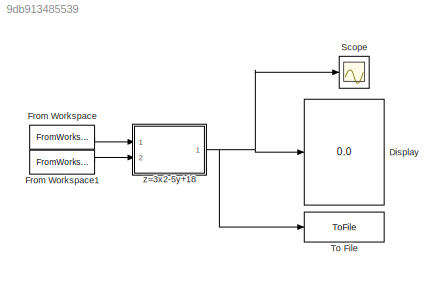
MODEL slx_9db913485539
KIND model
CONFIG AbsTol = auto
CONFIG EnableMultiTasking = off
CONFIG FixedStep = auto
CONFIG MaxStep = auto
CONFIG MinStep = auto
CONFIG RelTol = 1e-3
CONFIG SampleTimeConstraint = Unconstrained
CONFIG Solver = VariableStepAuto
CONFIG SolverName = VariableStepAuto
CONFIG StartTime = 0.0
CONFIG StopTime = 10.0
BLOCK [Display] Display
  Decimation = 1
  Ports = [1]
BLOCK [FromWorkspace] From Workspace
  VariableName = x
BLOCK [FromWorkspace] From Workspace1
  VariableName = y
BLOCK [Scope] Scope
  Floating = off
  NumInputPorts = 1
  Ports = [1]
  ScopeSpecificationString = Simulink.scopes.TimeScopeBlockCfg('CurrentConfiguration', extmgr.ConfigurationSet(extmgr.Configuration('Core','General UI',true),extmgr.Configuration('Core','Source UI',true),extmgr.Configuration('Sources','WiredSimulink',true),extmgr.Configuration('Visuals','Time Domain',true,'SerializedDisplays',{struct('MinYLimReal','-1225.885','MaxYLimReal','9932.965','YLabelReal','','MinYLimMag','  0.00000','...<+1541ch>
BLOCK [ToFile] To File
  Filename = simulink3.mat
  MatrixName = function_output
  Ports = [1]
  SaveFormat = Timeseries
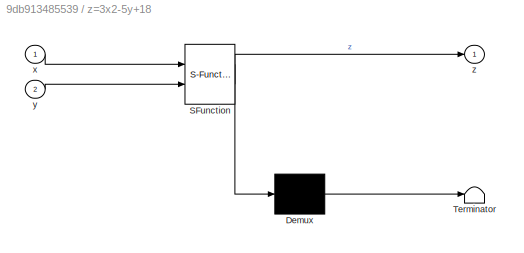
BLOCK [SubSystem] z=3x2-5y+18
  ErrorFcn = Stateflow.Translate.translate
  PermitHierarchicalResolution = ExplicitOnly
  Ports = [2, 1]
  RequestExecContextInheritance = off
  SFBlockType = MATLAB Function
  TreatAsAtomicUnit = on
BLOCK [Demux] z=3x2-5y+18/ Demux 
  Outputs = 1
  Ports = [1, 1]
BLOCK [S-Function] z=3x2-5y+18/ SFunction 
  EnableBusSupport = on
  FunctionName = sf_sfun
  PortCounts = [2 2]
  Ports = [2, 2]
  SFcnIsStateOwnerBlock = off
  SFunctionDeploymentMode = off
  Tag = Stateflow S-Function 2
BLOCK [Terminator] z=3x2-5y+18/ Terminator 
BLOCK [Inport] z=3x2-5y+18/x
BLOCK [Inport] z=3x2-5y+18/y
  Port = 2
BLOCK [Outport] z=3x2-5y+18/z
LINE From Workspace1:1 -> z=3x2-5y+18:2
LINE From Workspace:1 -> z=3x2-5y+18:1
NET z=3x2-5y+18:1 -> Display:1, Scope:1, To File:1
note: NET lines group one-source signal fan-out (src -> all destinations, sorted); 1:1 wires keep LINE
CHART z=3x2-5y+18 states=1 transitions=1
  STATE_LABEL 'eML_blk_kernel()'
  STATE_LABEL 'SCRIPT:\nfunction z  = fcn(x,y)\n\n[z] = 3*x.*x-5.*y +18 ;\nend\n'
CHART  states=0 transitions=0
